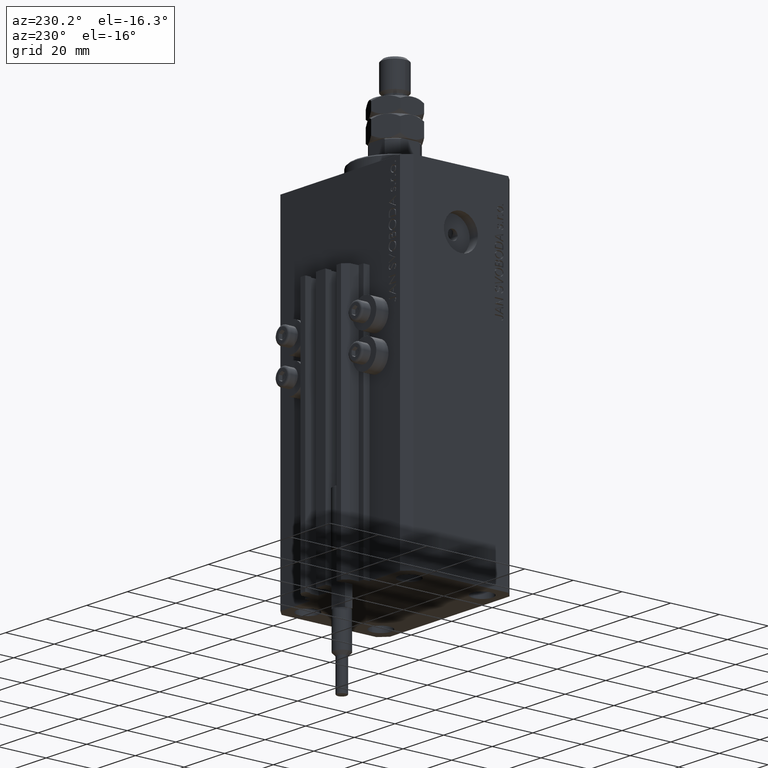
[diagram: clean part render]
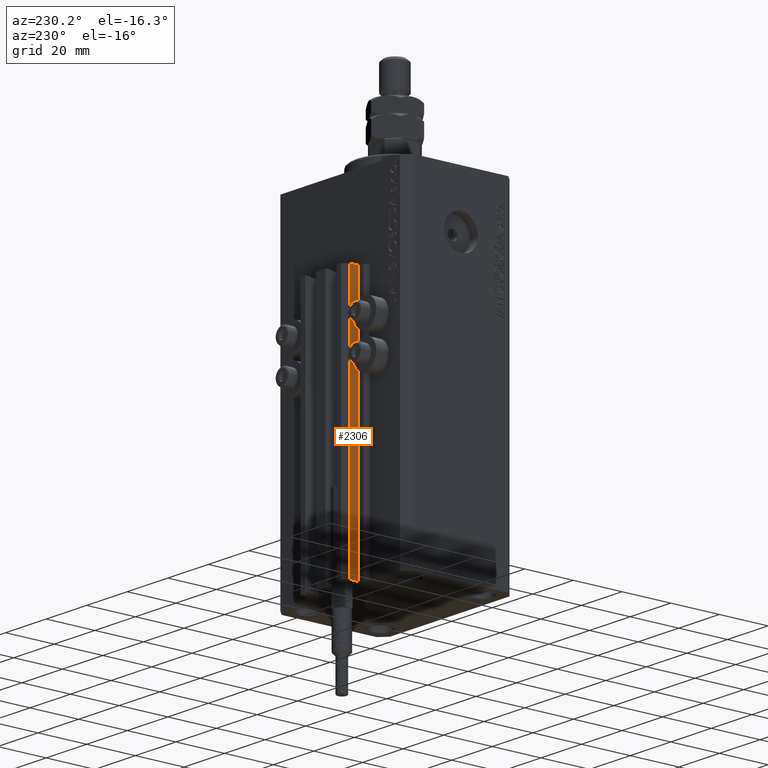
[diagram: same view with one face highlighted and labeled with its STEP entity id]
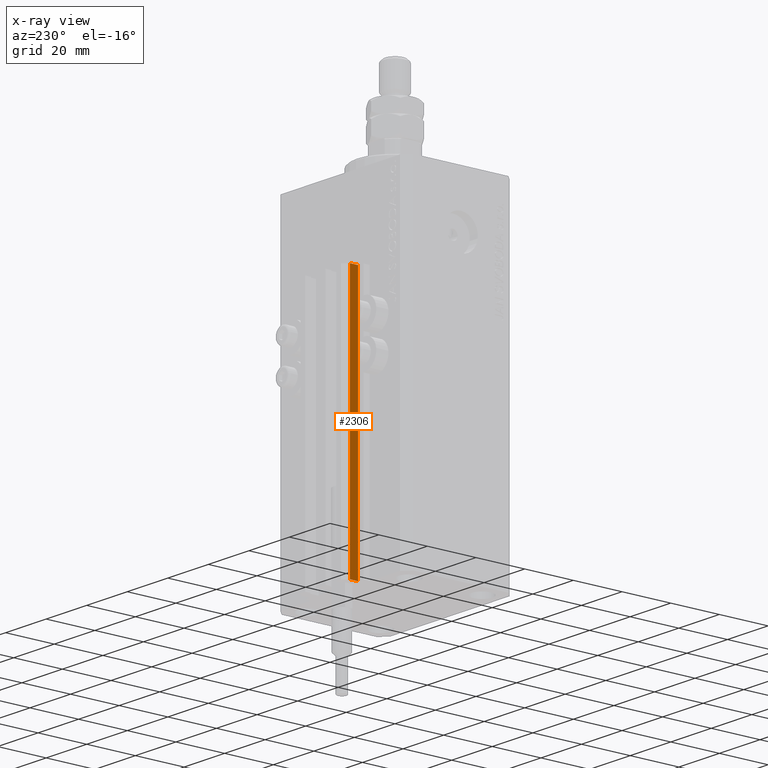
[diagram: x-ray of the same camera — body ghosted, the highlighted face saturated]
A machine part, auxiliary view. The second image highlights one B-rep face of the part: STEP entity #2306.
The next image is the same camera in x-ray: the body ghosted, the highlighted face saturated — about 0% of this face is hidden behind the body in this view.
In plain terms, the highlighted planar face has unit normal (-1, 0, 0).
Its self-contained STEP definition (entity closure, byte-faithful):
#190 = DIRECTION ( 'NONE',  ( 0.000000000000000000, 0.000000000000000000, 1.000000000000000000 ) ) ;
#1268 = CARTESIAN_POINT ( 'NONE',  ( -12.00000000000000000, 28.49999999999948841, -137.0000000000000000 ) ) ;
#2306 = ADVANCED_FACE ( 'NONE', ( #39339 ), #46623, .T. ) ;
#3024 = VECTOR ( 'NONE', #190, 1000.000000000000000 ) ;
#3065 = CARTESIAN_POINT ( 'NONE',  ( -12.00000000000000000, 28.49999999999948841, -137.0000000000000000 ) ) ;
#3334 = ORIENTED_EDGE ( 'NONE', *, *, #38216, .T. ) ;
#5003 = EDGE_CURVE ( 'NONE', #25217, #8598, #30975, .T. ) ;
#6470 = EDGE_LOOP ( 'NONE', ( #44430, #22572, #3334, #30897 ) ) ;
#7182 = CARTESIAN_POINT ( 'NONE',  ( -12.00000000000000000, 28.49999999999948841, -33.00000000000000000 ) ) ;
#8598 = VERTEX_POINT ( 'NONE', #11063 ) ;
#8904 = CARTESIAN_POINT ( 'NONE',  ( -12.00000000000000000, 28.49999999999948841, -33.00000000000000000 ) ) ;
#10772 = DIRECTION ( 'NONE',  ( 0.000000000000000000, 0.000000000000000000, 1.000000000000000000 ) ) ;
#11063 = CARTESIAN_POINT ( 'NONE',  ( -12.00000000000000000, 25.19999999999949125, -33.00000000000000000 ) ) ;
#11714 = CARTESIAN_POINT ( 'NONE',  ( -12.00000000000000000, 25.19999999999949125, -137.0000000000000000 ) ) ;
#13867 = AXIS2_PLACEMENT_3D ( 'NONE', #1268, #31071, #47120 ) ;
#14096 = DIRECTION ( 'NONE',  ( 0.000000000000000000, -1.000000000000000000, 0.000000000000000000 ) ) ;
#15484 = EDGE_CURVE ( 'NONE', #18455, #8598, #38045, .T. ) ;
#18455 = VERTEX_POINT ( 'NONE', #30613 ) ;
#19478 = CARTESIAN_POINT ( 'NONE',  ( -12.00000000000000000, 28.49999999999948841, -137.0000000000000000 ) ) ;
#22572 = ORIENTED_EDGE ( 'NONE', *, *, #26573, .F. ) ;
#25217 = VERTEX_POINT ( 'NONE', #7182 ) ;
#26468 = VECTOR ( 'NONE', #14096, 1000.000000000000000 ) ;
#26573 = EDGE_CURVE ( 'NONE', #29876, #25217, #44871, .T. ) ;
#29876 = VERTEX_POINT ( 'NONE', #19478 ) ;
#30613 = CARTESIAN_POINT ( 'NONE',  ( -12.00000000000000000, 25.19999999999949125, -137.0000000000000000 ) ) ;
#30897 = ORIENTED_EDGE ( 'NONE', *, *, #15484, .T. ) ;
#30975 = LINE ( 'NONE', #8904, #31759 ) ;
#31071 = DIRECTION ( 'NONE',  ( -1.000000000000000000, 0.000000000000000000, 0.000000000000000000 ) ) ;
#31759 = VECTOR ( 'NONE', #34740, 1000.000000000000000 ) ;
#34740 = DIRECTION ( 'NONE',  ( 0.000000000000000000, -1.000000000000000000, 0.000000000000000000 ) ) ;
#38045 = LINE ( 'NONE', #11714, #3024 ) ;
#38216 = EDGE_CURVE ( 'NONE', #29876, #18455, #40901, .T. ) ;
#39339 = FACE_OUTER_BOUND ( 'NONE', #6470, .T. ) ;
#40901 = LINE ( 'NONE', #3065, #26468 ) ;
#41846 = CARTESIAN_POINT ( 'NONE',  ( -12.00000000000000000, 28.49999999999948841, -137.0000000000000000 ) ) ;
#44430 = ORIENTED_EDGE ( 'NONE', *, *, #5003, .F. ) ;
#44871 = LINE ( 'NONE', #41846, #49390 ) ;
#46623 = PLANE ( 'NONE',  #13867 ) ;
#47120 = DIRECTION ( 'NONE',  ( 0.000000000000000000, 0.000000000000000000, 1.000000000000000000 ) ) ;
#49390 = VECTOR ( 'NONE', #10772, 1000.000000000000000 ) ;